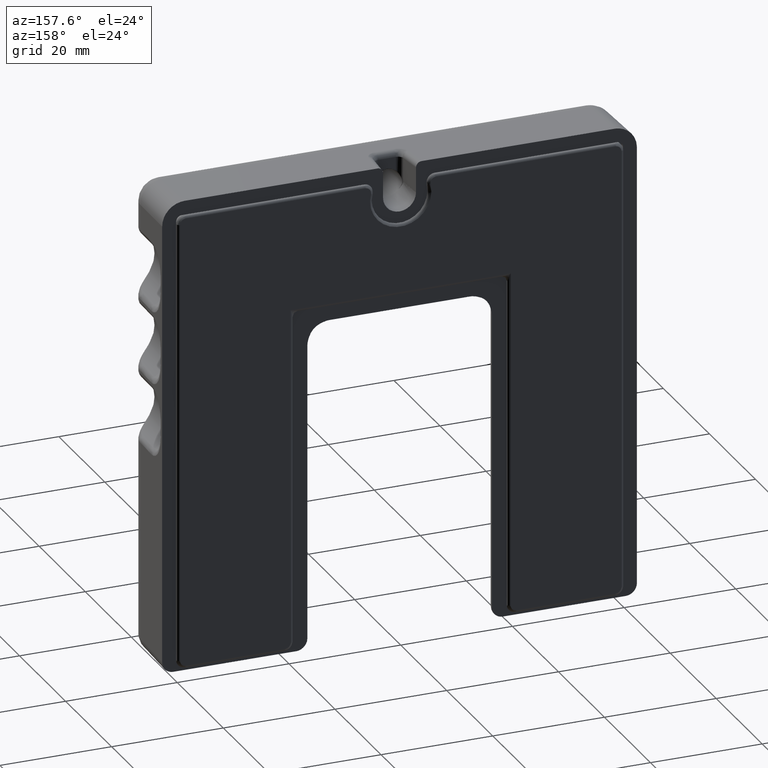
[diagram: clean part render]
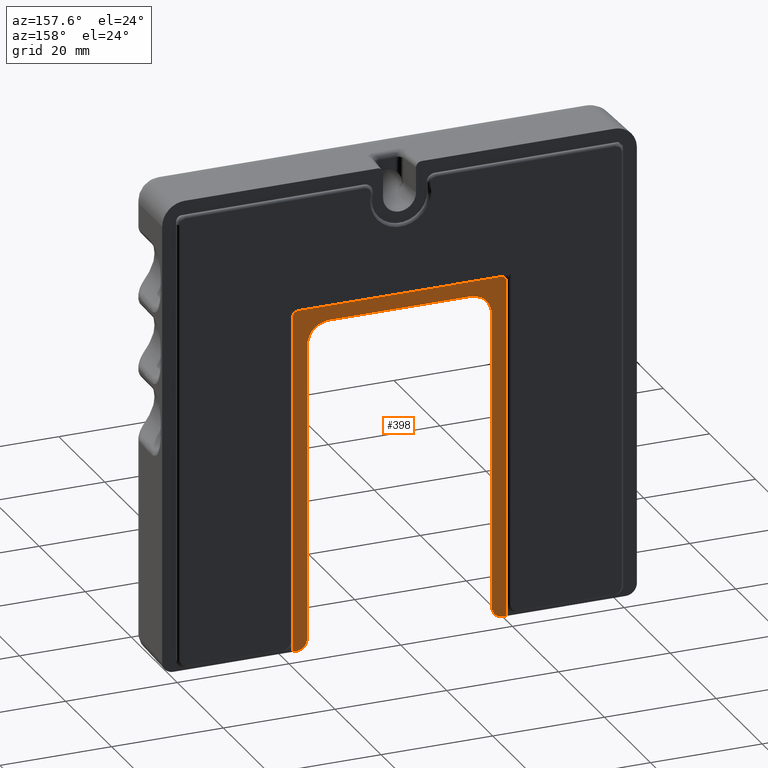
[diagram: same view with one face highlighted and labeled with its STEP entity id]
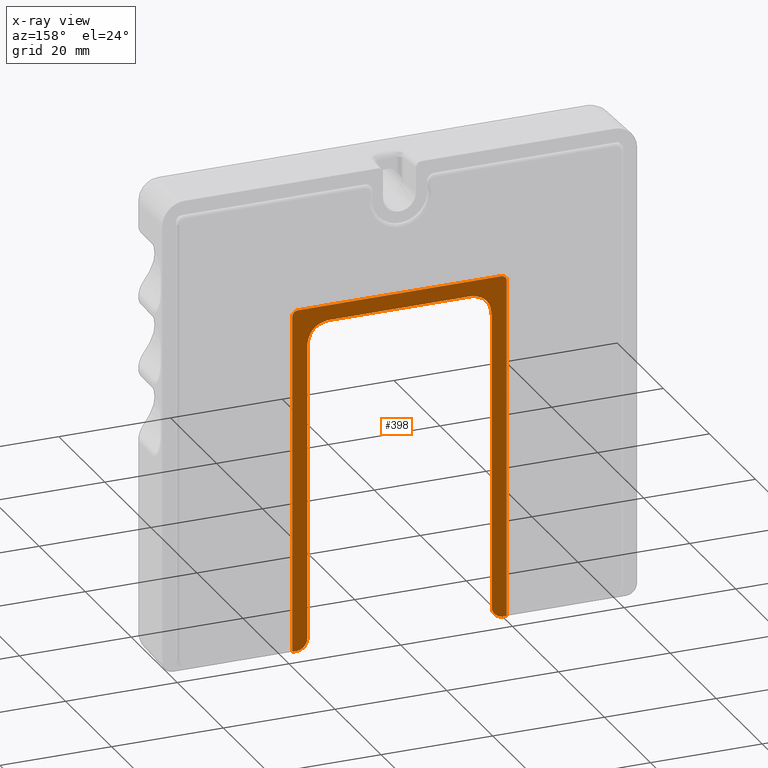
[diagram: x-ray of the same camera — body ghosted, the highlighted face saturated]
A machine part, auxiliary view. The second image highlights one B-rep face of the part: STEP entity #398.
The next image is the same camera in x-ray: the body ghosted, the highlighted face saturated — about 0% of this face is hidden behind the body in this view.
In plain terms, the highlighted planar face has unit normal (0, 1, 0).
Its self-contained STEP definition (entity closure, byte-faithful):
#398=ADVANCED_FACE('',(#1837),#1836,.T.);
#1836=PLANE('',#7287);
#1837=FACE_OUTER_BOUND('',#7288,.T.);
#7284=CARTESIAN_POINT('',(-2.30376757671E+001,-5.00000000000E-001,-6.51698063139E+001));
#7285=DIRECTION('',(0.00000000000E+000,1.00000000000E+000,0.00000000000E+000));
#7286=DIRECTION('',(0.00000000000E+000,0.00000000000E+000,1.00000000000E+000));
#7287=AXIS2_PLACEMENT_3D('',#7284,#7285,#7286);
#7288=EDGE_LOOP('',(#8653,#8654,#8655,#8656,#8657,#8658,#8659,#8660,#8661,#8662,#8663,#8664,#8665,#8666,#8667,#8668,#8669,#8670,#8671,#8672,#8673,#8674));
#8653=ORIENTED_EDGE('',*,*,#8984,.F.);
#8654=ORIENTED_EDGE('',*,*,#9333,.T.);
#8655=ORIENTED_EDGE('',*,*,#9334,.T.);
#8656=ORIENTED_EDGE('',*,*,#9335,.T.);
#8657=ORIENTED_EDGE('',*,*,#8986,.F.);
#8658=ORIENTED_EDGE('',*,*,#9328,.F.);
#8659=ORIENTED_EDGE('',*,*,#9244,.F.);
#8660=ORIENTED_EDGE('',*,*,#9299,.F.);
#8661=ORIENTED_EDGE('',*,*,#9309,.T.);
#8662=ORIENTED_EDGE('',*,*,#9084,.F.);
#8663=ORIENTED_EDGE('',*,*,#9081,.T.);
#8664=ORIENTED_EDGE('',*,*,#9077,.T.);
#8665=ORIENTED_EDGE('',*,*,#9095,.T.);
#8666=ORIENTED_EDGE('',*,*,#9302,.F.);
#8667=ORIENTED_EDGE('',*,*,#9310,.T.);
#8668=ORIENTED_EDGE('',*,*,#9069,.F.);
#8669=ORIENTED_EDGE('',*,*,#9066,.T.);
#8670=ORIENTED_EDGE('',*,*,#9063,.T.);
#8671=ORIENTED_EDGE('',*,*,#9093,.T.);
#8672=ORIENTED_EDGE('',*,*,#9300,.F.);
#8673=ORIENTED_EDGE('',*,*,#9208,.F.);
#8674=ORIENTED_EDGE('',*,*,#9288,.F.);
#8984=EDGE_CURVE('',#9698,#9705,#9706,.T.);
#8986=EDGE_CURVE('',#9718,#9719,#9720,.T.);
#9063=EDGE_CURVE('',#10212,#10226,#10233,.T.);
#9066=EDGE_CURVE('',#10239,#10212,#10253,.T.);
#9069=EDGE_CURVE('',#10239,#10273,#10274,.T.);
#9077=EDGE_CURVE('',#10306,#10320,#10327,.T.);
#9081=EDGE_CURVE('',#10333,#10306,#10354,.T.);
#9084=EDGE_CURVE('',#10333,#10374,#10375,.T.);
#9093=EDGE_CURVE('',#10226,#10434,#10435,.T.);
#9095=EDGE_CURVE('',#10320,#10447,#10448,.T.);
#9208=EDGE_CURVE('',#11194,#11180,#11201,.T.);
#9244=EDGE_CURVE('',#11433,#11420,#11440,.T.);
#9288=EDGE_CURVE('',#9705,#11194,#11725,.T.);
#9299=EDGE_CURVE('',#11785,#11433,#11792,.T.);
#9300=EDGE_CURVE('',#11180,#10434,#11798,.T.);
#9302=EDGE_CURVE('',#11804,#10447,#11811,.T.);
#9309=EDGE_CURVE('',#11785,#10374,#11853,.T.);
#9310=EDGE_CURVE('',#11804,#10273,#11859,.T.);
#9328=EDGE_CURVE('',#11420,#9718,#11973,.T.);
#9333=EDGE_CURVE('',#9698,#12005,#12006,.T.);
#9334=EDGE_CURVE('',#12005,#12012,#12013,.T.);
#9335=EDGE_CURVE('',#12012,#9719,#12019,.T.);
#9698=VERTEX_POINT('',#13192);
#9705=VERTEX_POINT('',#13196);
#9706=LINE('',#13197,#13198);
#9718=VERTEX_POINT('',#13203);
#9719=VERTEX_POINT('',#13204);
#9720=LINE('',#13205,#13206);
#10212=VERTEX_POINT('',#13514);
#10226=VERTEX_POINT('',#13523);
#10233=(BOUNDED_CURVE() B_SPLINE_CURVE(3,(#13527,#13528,#13529,#13530),.UNSPECIFIED.,.F.,.F.) B_SPLINE_CURVE_WITH_KNOTS((4,4),(0.00000000000E+000,1.00000000000E+000),.UNSPECIFIED.) CURVE() GEOMETRIC_REPRESENTATION_ITEM() RATIONAL_B_SPLINE_CURVE((1.00000000000E+000,1.00000000000E+000,1.00000000000E+000,1.00000000000E+000)) REPRESENTATION_ITEM('') );
#10239=VERTEX_POINT('',#13531);
#10253=(BOUNDED_CURVE() B_SPLINE_CURVE(3,(#13540,#13541,#13542,#13543,#13544,#13545),.UNSPECIFIED.,.F.,.F.) B_SPLINE_CURVE_WITH_KNOTS((4,2,4),(0.00000000000E+000,5.00000000000E-001,1.00000000000E+000),.UNSPECIFIED.) CURVE() GEOMETRIC_REPRESENTATION_ITEM() RATIONAL_B_SPLINE_CURVE((1.00000000000E+000,1.00000000000E+000,1.00000000000E+000,1.00000000000E+000,1.00000000000E+000,1.00000000000E+000)) REPRESENTATION_ITEM('') );
#10273=VERTEX_POINT('',#13555);
#10274=(BOUNDED_CURVE() B_SPLINE_CURVE(3,(#13556,#13557,#13558,#13559),.UNSPECIFIED.,.F.,.F.) B_SPLINE_CURVE_WITH_KNOTS((4,4),(0.00000000000E+000,1.00000000000E+000),.UNSPECIFIED.) CURVE() GEOMETRIC_REPRESENTATION_ITEM() RATIONAL_B_SPLINE_CURVE((1.00000000000E+000,1.00000000000E+000,1.00000000000E+000,1.00000000000E+000)) REPRESENTATION_ITEM('') );
#10306=VERTEX_POINT('',#13575);
#10320=VERTEX_POINT('',#13584);
#10327=(BOUNDED_CURVE() B_SPLINE_CURVE(3,(#13588,#13589,#13590,#13591),.UNSPECIFIED.,.F.,.F.) B_SPLINE_CURVE_WITH_KNOTS((4,4),(0.00000000000E+000,1.00000000000E+000),.UNSPECIFIED.) CURVE() GEOMETRIC_REPRESENTATION_ITEM() RATIONAL_B_SPLINE_CURVE((1.00000000000E+000,1.00000000000E+000,1.00000000000E+000,1.00000000000E+000)) REPRESENTATION_ITEM('') );
#10333=VERTEX_POINT('',#13592);
#10354=(BOUNDED_CURVE() B_SPLINE_CURVE(3,(#13605,#13606,#13607,#13608,#13609,#13610),.UNSPECIFIED.,.F.,.F.) B_SPLINE_CURVE_WITH_KNOTS((4,2,4),(0.00000000000E+000,5.00000000000E-001,1.00000000000E+000),.UNSPECIFIED.) CURVE() GEOMETRIC_REPRESENTATION_ITEM() RATIONAL_B_SPLINE_CURVE((1.00000000000E+000,1.00000000000E+000,1.00000000000E+000,1.00000000000E+000,1.00000000000E+000,1.00000000000E+000)) REPRESENTATION_ITEM('') );
#10374=VERTEX_POINT('',#13620);
#10375=(BOUNDED_CURVE() B_SPLINE_CURVE(3,(#13621,#13622,#13623,#13624),.UNSPECIFIED.,.F.,.F.) B_SPLINE_CURVE_WITH_KNOTS((4,4),(0.00000000000E+000,1.00000000000E+000),.UNSPECIFIED.) CURVE() GEOMETRIC_REPRESENTATION_ITEM() RATIONAL_B_SPLINE_CURVE((1.00000000000E+000,1.00000000000E+000,1.00000000000E+000,1.00000000000E+000)) REPRESENTATION_ITEM('') );
#10434=VERTEX_POINT('',#13659);
#10435=CIRCLE('',#13663,4.00000000000E+000);
#10447=VERTEX_POINT('',#13667);
#10448=CIRCLE('',#13671,4.00000000000E+000);
#11180=VERTEX_POINT('',#14417);
#11194=VERTEX_POINT('',#14426);
#11201=(BOUNDED_CURVE() B_SPLINE_CURVE(2,(#14430,#14431,#14432),.UNSPECIFIED.,.F.,.F.) B_SPLINE_CURVE_WITH_KNOTS((3,3),(0.00000000000E+000,1.00000000000E+000),.UNSPECIFIED.) CURVE() GEOMETRIC_REPRESENTATION_ITEM() RATIONAL_B_SPLINE_CURVE((1.00000000000E+000,7.07106781187E-001,1.00000000000E+000)) REPRESENTATION_ITEM('') );
#11420=VERTEX_POINT('',#14566);
#11433=VERTEX_POINT('',#14574);
#11440=(BOUNDED_CURVE() B_SPLINE_CURVE(2,(#14578,#14579,#14580),.UNSPECIFIED.,.F.,.F.) B_SPLINE_CURVE_WITH_KNOTS((3,3),(0.00000000000E+000,1.00000000000E+000),.UNSPECIFIED.) CURVE() GEOMETRIC_REPRESENTATION_ITEM() RATIONAL_B_SPLINE_CURVE((1.00000000000E+000,7.07106781187E-001,1.00000000000E+000)) REPRESENTATION_ITEM('') );
#11725=LINE('',#14750,#14751);
#11785=VERTEX_POINT('',#14780);
#11792=LINE('',#14784,#14785);
#11798=LINE('',#14787,#14788);
#11804=VERTEX_POINT('',#14790);
#11811=LINE('',#14794,#14795);
#11853=CIRCLE('',#14818,4.00000000000E+000);
#11859=CIRCLE('',#14822,4.00000000000E+000);
#11973=LINE('',#14888,#14889);
#12005=VERTEX_POINT('',#14908);
#12006=CIRCLE('',#14912,1.00000000000E+000);
#12012=VERTEX_POINT('',#14913);
#12013=LINE('',#14914,#14915);
#12019=CIRCLE('',#14920,1.00000000000E+000);
#13192=CARTESIAN_POINT('',(-1.91980631392E+001,-4.99999999985E-001,1.69806313922E+000));
#13196=CARTESIAN_POINT('',(-1.91980631393E+001,-4.99999999985E-001,-5.90000000000E+001));
#13197=CARTESIAN_POINT('',(-1.91980631392E+001,-4.99999999985E-001,1.69806313922E+000));
#13198=VECTOR('',#13199,6.06980631391E+001);
#13199=DIRECTION('',(0.00000000000E+000,0.00000000000E+000,-1.00000000000E+000));
#13203=CARTESIAN_POINT('',(1.91980631393E+001,-4.99999999985E-001,-5.90000000000E+001));
#13204=CARTESIAN_POINT('',(1.91980631393E+001,-4.99999999985E-001,1.69806313922E+000));
#13205=CARTESIAN_POINT('',(1.91980631393E+001,-4.99999999985E-001,-5.89999999999E+001));
#13206=VECTOR('',#13207,6.06980631391E+001);
#13207=DIRECTION('',(0.00000000000E+000,0.00000000000E+000,1.00000000000E+000));
#13514=CARTESIAN_POINT('',(-1.62986329569E+001,-5.00000000000E-001,-2.71909415317E+000));
#13523=CARTESIAN_POINT('',(-1.64466593153E+001,-5.00000000000E-001,-3.34893913564E+000));
#13527=CARTESIAN_POINT('',(-1.62986329569E+001,-5.00000000000E-001,-2.71909415317E+000));
#13528=CARTESIAN_POINT('',(-1.63609464744E+001,-5.00000000000E-001,-2.92752030360E+000));
#13529=CARTESIAN_POINT('',(-1.64117458618E+001,-5.00000000000E-001,-3.13729762256E+000));
#13530=CARTESIAN_POINT('',(-1.64466593153E+001,-5.00000000000E-001,-3.34893913564E+000));
#13531=CARTESIAN_POINT('',(-1.37809058468E+001,-5.00000000000E-001,-2.01367043137E-001));
#13540=CARTESIAN_POINT('',(-1.37809058468E+001,-5.00000000000E-001,-2.01367043137E-001));
#13541=CARTESIAN_POINT('',(-1.43807793010E+001,-5.00000000000E-001,-3.80712221044E-001));
#13542=CARTESIAN_POINT('',(-1.49437231523E+001,-5.00000000000E-001,-6.77385470659E-001));
#13543=CARTESIAN_POINT('',(-1.58215815040E+001,-5.00000000000E-001,-1.55475335838E+000));
#13544=CARTESIAN_POINT('',(-1.61202181432E+001,-5.00000000000E-001,-2.12233257986E+000));
#13545=CARTESIAN_POINT('',(-1.62986329569E+001,-5.00000000000E-001,-2.71909415317E+000));
#13555=CARTESIAN_POINT('',(-1.31510608643E+001,-5.00000000000E-001,-5.33406847050E-002));
#13556=CARTESIAN_POINT('',(-1.37809058468E+001,-5.00000000000E-001,-2.01367043137E-001));
#13557=CARTESIAN_POINT('',(-1.35750467578E+001,-5.00000000000E-001,-1.39821004236E-001));
#13558=CARTESIAN_POINT('',(-1.33656793353E+001,-5.00000000000E-001,-8.87452322198E-002));
#13559=CARTESIAN_POINT('',(-1.31510608643E+001,-5.00000000000E-001,-5.33406847050E-002));
#13575=CARTESIAN_POINT('',(1.37809058469E+001,-5.00000000000E-001,-2.01367043137E-001));
#13584=CARTESIAN_POINT('',(1.31510608643E+001,-5.00000000000E-001,-5.33406847050E-002));
#13588=CARTESIAN_POINT('',(1.37809058469E+001,-5.00000000000E-001,-2.01367043134E-001));
#13589=CARTESIAN_POINT('',(1.35724796964E+001,-5.00000000000E-001,-1.39053525554E-001));
#13590=CARTESIAN_POINT('',(1.33627023774E+001,-5.00000000000E-001,-8.82541381926E-002));
#13591=CARTESIAN_POINT('',(1.31510608643E+001,-5.00000000000E-001,-5.33406847050E-002));
#13592=CARTESIAN_POINT('',(1.62986329569E+001,-5.00000000000E-001,-2.71909415317E+000));
#13605=CARTESIAN_POINT('',(1.62986329569E+001,-5.00000000000E-001,-2.71909415317E+000));
#13606=CARTESIAN_POINT('',(1.61192877790E+001,-5.00000000000E-001,-2.11922069898E+000));
#13607=CARTESIAN_POINT('',(1.58226145294E+001,-5.00000000000E-001,-1.55627684766E+000));
#13608=CARTESIAN_POINT('',(1.49452466417E+001,-5.00000000000E-001,-6.78418496039E-001));
#13609=CARTESIAN_POINT('',(1.43776674202E+001,-5.00000000000E-001,-3.79781856767E-001));
#13610=CARTESIAN_POINT('',(1.37809058469E+001,-5.00000000000E-001,-2.01367043134E-001));
#13620=CARTESIAN_POINT('',(1.64466593153E+001,-5.00000000000E-001,-3.34893913564E+000));
#13621=CARTESIAN_POINT('',(1.62986329569E+001,-5.00000000000E-001,-2.71909415317E+000));
#13622=CARTESIAN_POINT('',(1.63601789958E+001,-5.00000000000E-001,-2.92495324219E+000));
#13623=CARTESIAN_POINT('',(1.64112547678E+001,-5.00000000000E-001,-3.13432066461E+000));
#13624=CARTESIAN_POINT('',(1.64466593153E+001,-5.00000000000E-001,-3.34893913564E+000));
#13659=CARTESIAN_POINT('',(-1.65000000000E+001,-4.99999999985E-001,-4.00000000000E+000));
#13660=CARTESIAN_POINT('',(-1.25000000000E+001,-5.00000000000E-001,-4.00000000000E+000));
#13661=DIRECTION('',(0.00000000000E+000,-1.00000000000E+000,0.00000000000E+000));
#13662=DIRECTION('',(9.86664828820E-001,-0.00000000000E+000,-1.62765216091E-001));
#13663=AXIS2_PLACEMENT_3D('',#13660,#13661,#13662);
#13667=CARTESIAN_POINT('',(1.25000000001E+001,-5.00000000000E-001,0.00000000000E+000));
#13668=CARTESIAN_POINT('',(1.25000000001E+001,-5.00000000000E-001,-4.00000000000E+000));
#13669=DIRECTION('',(0.00000000000E+000,-1.00000000000E+000,0.00000000000E+000));
#13670=DIRECTION('',(-1.62765216070E-001,-0.00000000000E+000,-9.86664828824E-001));
#13671=AXIS2_PLACEMENT_3D('',#13668,#13669,#13670);
#14417=CARTESIAN_POINT('',(-1.65000000000E+001,-4.99999999985E-001,-5.69996953438E+001));
#14426=CARTESIAN_POINT('',(-1.85000000000E+001,-4.99999999984E-001,-5.89999999999E+001));
#14430=CARTESIAN_POINT('',(-1.85000000000E+001,-5.00000000000E-001,-5.89999999999E+001));
#14431=CARTESIAN_POINT('',(-1.65000000000E+001,-5.00000000000E-001,-5.89999999999E+001));
#14432=CARTESIAN_POINT('',(-1.65000000000E+001,-5.00000000000E-001,-5.69996953438E+001));
#14566=CARTESIAN_POINT('',(1.85000000001E+001,-4.99999999984E-001,-5.89999999999E+001));
#14574=CARTESIAN_POINT('',(1.65000000001E+001,-4.99999999985E-001,-5.69996953438E+001));
#14578=CARTESIAN_POINT('',(1.65000000001E+001,-5.00000000000E-001,-5.69996953438E+001));
#14579=CARTESIAN_POINT('',(1.65000000001E+001,-5.00000000000E-001,-5.89999999999E+001));
#14580=CARTESIAN_POINT('',(1.85000000001E+001,-5.00000000000E-001,-5.89999999999E+001));
#14750=CARTESIAN_POINT('',(-1.91980631393E+001,-4.99999999985E-001,-5.90000000000E+001));
#14751=VECTOR('',#14752,6.98063139289E-001);
#14752=DIRECTION('',(1.00000000000E+000,0.00000000000E+000,0.00000000000E+000));
#14780=CARTESIAN_POINT('',(1.65000000001E+001,-4.99999999985E-001,-4.00000000000E+000));
#14784=CARTESIAN_POINT('',(1.65000000001E+001,-4.99999999985E-001,-4.00000000000E+000));
#14785=VECTOR('',#14786,5.29996953438E+001);
#14786=DIRECTION('',(0.00000000000E+000,0.00000000000E+000,-1.00000000000E+000));
#14787=CARTESIAN_POINT('',(-1.65000000000E+001,-4.99999999985E-001,-5.69996953438E+001));
#14788=VECTOR('',#14789,5.29996953438E+001);
#14789=DIRECTION('',(0.00000000000E+000,0.00000000000E+000,1.00000000000E+000));
#14790=CARTESIAN_POINT('',(-1.25000000000E+001,-5.00000000000E-001,0.00000000000E+000));
#14794=CARTESIAN_POINT('',(-1.25000000000E+001,-5.00000000000E-001,0.00000000000E+000));
#14795=VECTOR('',#14796,2.50000000001E+001);
#14796=DIRECTION('',(1.00000000000E+000,0.00000000000E+000,0.00000000000E+000));
#14815=CARTESIAN_POINT('',(1.25000000001E+001,-5.00000000000E-001,-4.00000000000E+000));
#14816=DIRECTION('',(0.00000000000E+000,-1.00000000000E+000,0.00000000000E+000));
#14817=DIRECTION('',(-1.00000000000E+000,-0.00000000000E+000,-0.00000000000E+000));
#14818=AXIS2_PLACEMENT_3D('',#14815,#14816,#14817);
#14819=CARTESIAN_POINT('',(-1.25000000000E+001,-5.00000000000E-001,-4.00000000000E+000));
#14820=DIRECTION('',(0.00000000000E+000,-1.00000000000E+000,0.00000000000E+000));
#14821=DIRECTION('',(7.10542735760E-015,-0.00000000000E+000,-1.00000000000E+000));
#14822=AXIS2_PLACEMENT_3D('',#14819,#14820,#14821);
#14888=CARTESIAN_POINT('',(1.85000000001E+001,-4.99999999985E-001,-5.90000000000E+001));
#14889=VECTOR('',#14890,6.98063139216E-001);
#14890=DIRECTION('',(1.00000000000E+000,0.00000000000E+000,0.00000000000E+000));
#14908=CARTESIAN_POINT('',(-1.81980631393E+001,-5.00000000000E-001,2.69806313922E+000));
#14909=CARTESIAN_POINT('',(-1.81980631393E+001,-5.00000000000E-001,1.69806313922E+000));
#14910=DIRECTION('',(0.00000000000E+000,1.00000000000E+000,0.00000000000E+000));
#14911=DIRECTION('',(1.00000000000E+000,-0.00000000000E+000,2.88657986403E-015));
#14912=AXIS2_PLACEMENT_3D('',#14909,#14910,#14911);
#14913=CARTESIAN_POINT('',(1.81980631393E+001,-5.00000000000E-001,2.69806313922E+000));
#14914=CARTESIAN_POINT('',(-1.81980631393E+001,-5.00000000000E-001,2.69806313922E+000));
#14915=VECTOR('',#14916,3.63961262786E+001);
#14916=DIRECTION('',(1.00000000000E+000,0.00000000000E+000,0.00000000000E+000));
#14917=CARTESIAN_POINT('',(1.81980631393E+001,-5.00000000000E-001,1.69806313922E+000));
#14918=DIRECTION('',(0.00000000000E+000,1.00000000000E+000,-0.00000000000E+000));
#14919=DIRECTION('',(-0.00000000000E+000,-0.00000000000E+000,-1.00000000000E+000));
#14920=AXIS2_PLACEMENT_3D('',#14917,#14918,#14919);